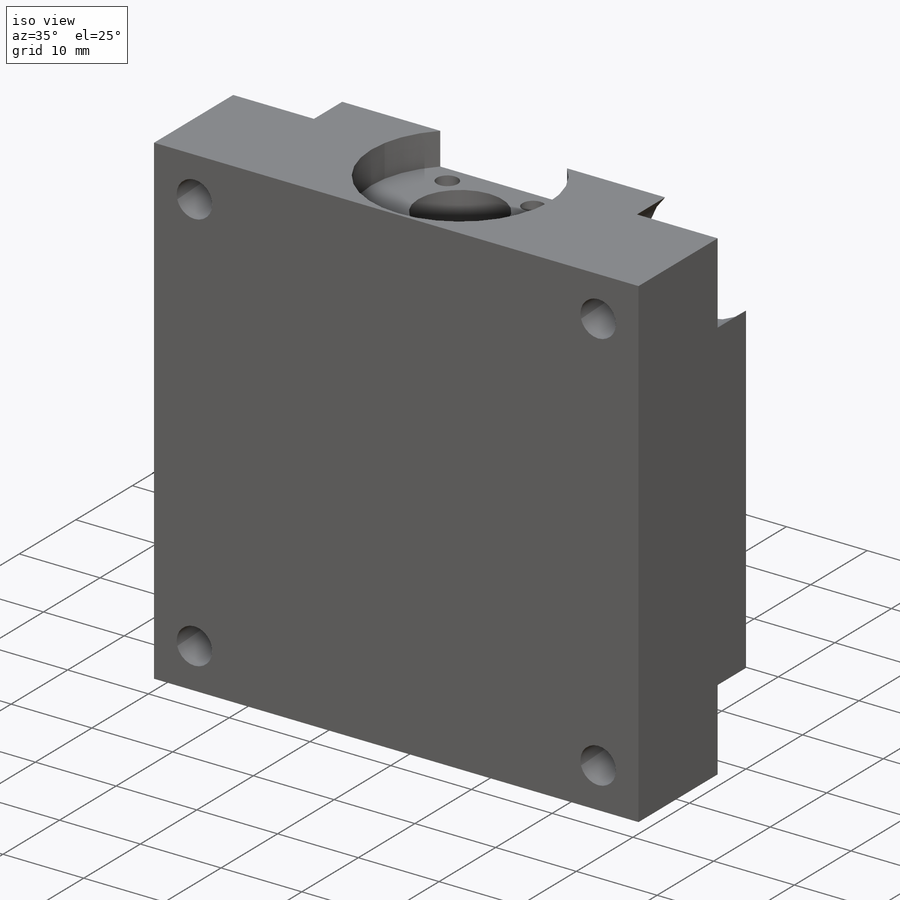
[diagram: iso view]
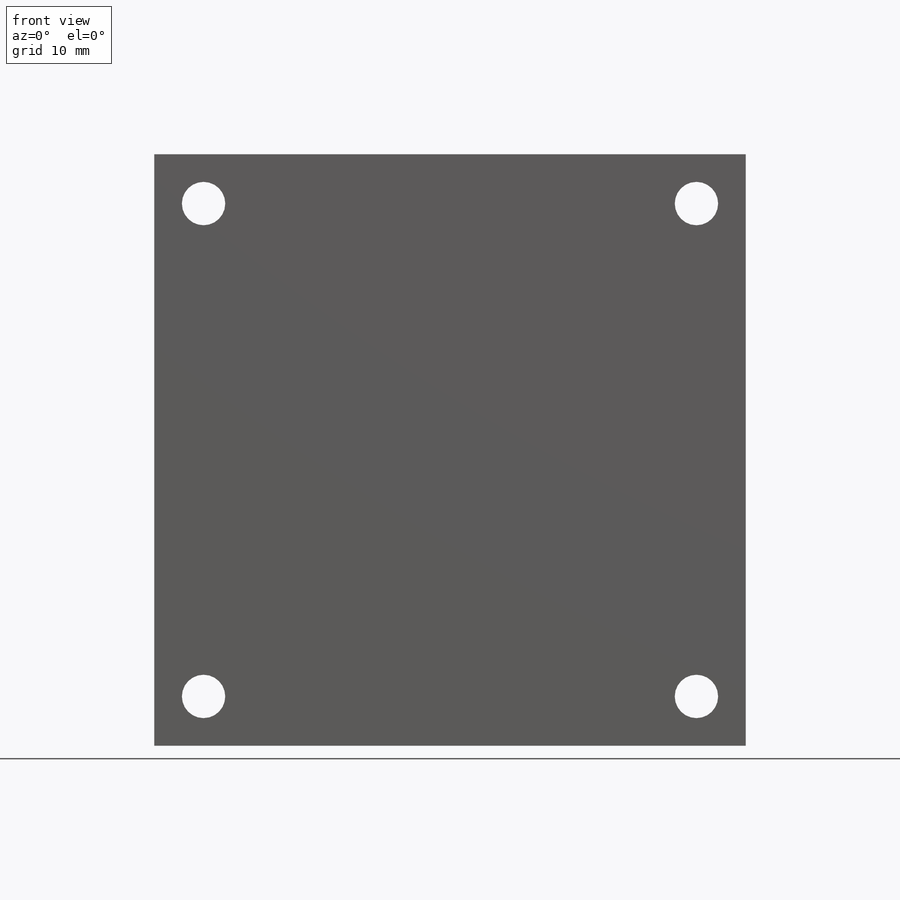
[diagram: front view]
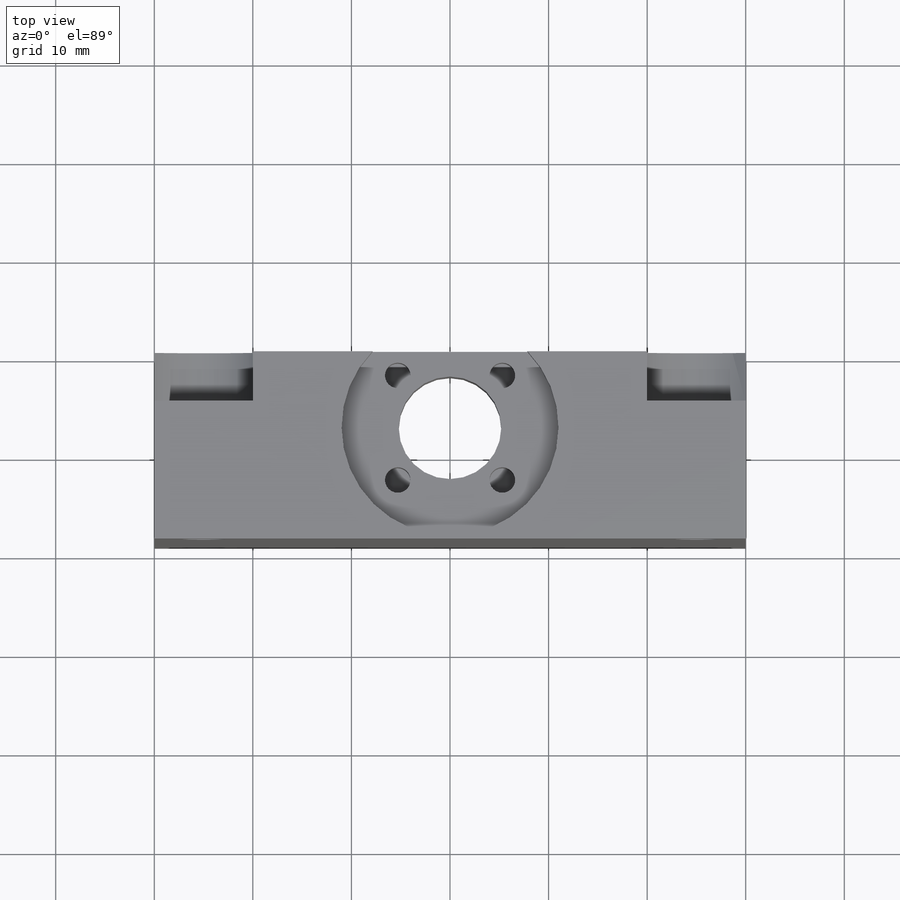
[diagram: top view]
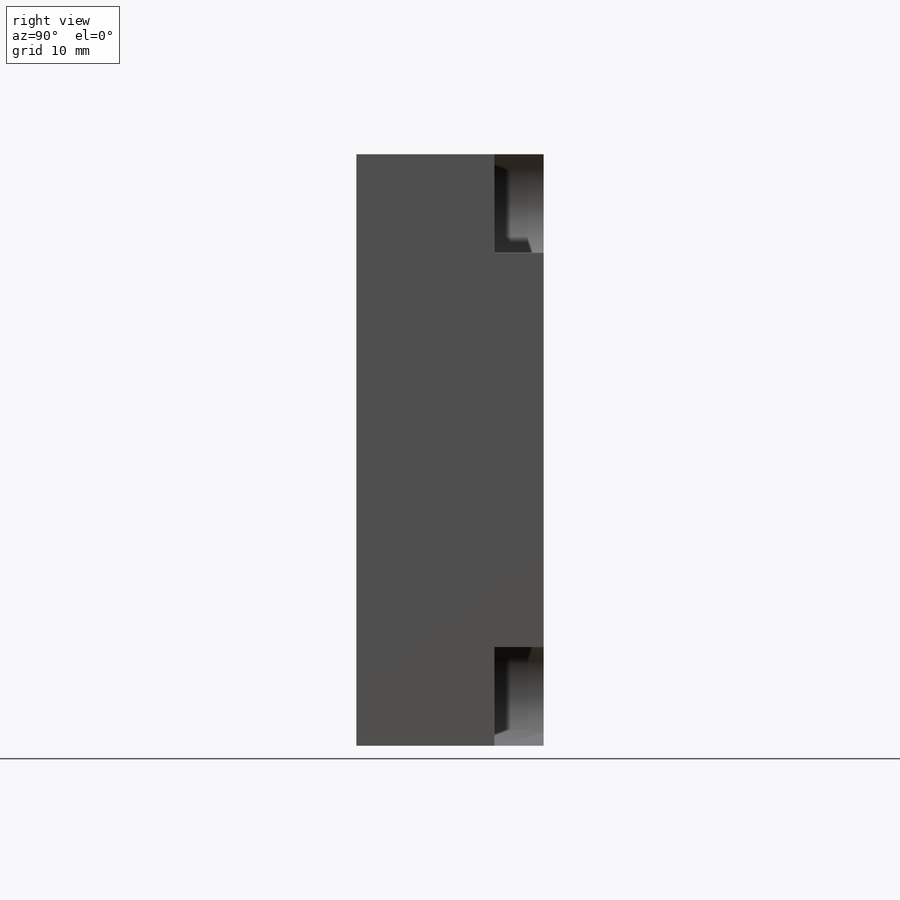
[diagram: right view]
SOLIDWORKS PART (.sldprt)
format: sldprt  version: not decoded by parser v0  size: 203,776 bytes
history: native  units: mm
features: sketch x6, cut_extrude x5, material x1, extrude x1 (+13 scaffold rows collapsed)
feature tree (26):
  scaffold x13  (default folders/planes/origin — collapsed)
  material  "Material <not specified>"
  sketch  "Sketch1"  dims[D5=1.8mm D1=60.0mm D2=60.0mm D3=50.0mm D4=50.0mm]
  extrude  "Boss-Extrude1"  Depth=19mm
  sketch  "Sketch2"  dims[c1.D1=~7.772646mm c1.D2=11.2mm c2.D1=7.7mm]
  cut_extrude  "Cut-Extrude1"  Depth=4mm
  sketch  "Sketch3"  dims[D1=5.0mm]
  cut_extrude  "Cut-Extrude2"  [1 undecoded]
  sketch  "Sketch4"  dims[D1=~8.567491mm]
  cut_extrude  "Cut-Extrude3"  Depth=46mm
  sketch  "Sketch5"  dims[D1=6.0mm]
  cut_extrude  "Cut-Extrude4"  Depth=6mm
  sketch  "Sketch6"
  cut_extrude  "Cut-Extrude5"  Depth=5mm
decode coverage: 10 of 12 modeling features carry decoded parameters
note: ~ marks probable driven/reference dimensions
note: 1 parameter value undecoded
note: suppression state not decoded; provenance and decode notes live in map.json
